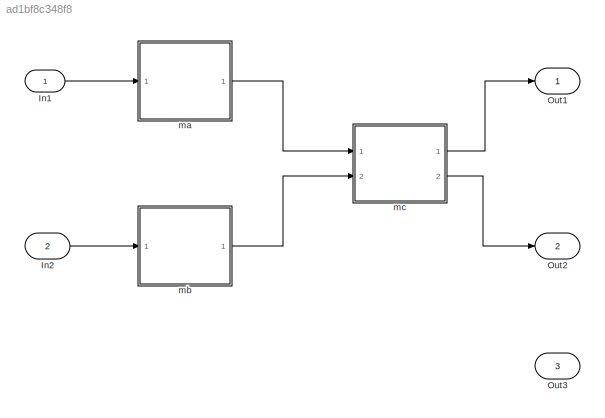
MODEL slx_ad1bf8c348f8
KIND model
CONFIG AbsTol = auto
CONFIG EnableMultiTasking = off
CONFIG FixedStep = auto
CONFIG MaxStep = auto
CONFIG MinStep = auto
CONFIG RelTol = 1e-3
CONFIG SampleTimeConstraint = Unconstrained
CONFIG Solver = VariableStepAuto
CONFIG SolverName = VariableStepAuto
CONFIG StartTime = 0.0
CONFIG StopTime = 10.0
BLOCK [Inport] In1
  IconDisplay = Port number
  OutDataTypeStr = double
BLOCK [Inport] In2
  IconDisplay = Port number
  OutDataTypeStr = int32
  Port = 2
BLOCK [Outport] Out1
  IconDisplay = Port number
  OutDataTypeStr = double
BLOCK [Outport] Out2
  IconDisplay = Port number
  OutDataTypeStr = boolean
  Port = 2
BLOCK [Outport] Out3
  IconDisplay = Port number
  OutDataTypeStr = boolean
  Port = 3
BLOCK [ModelReference] ma
  ModelNameDialog = Mission_A
  ModelReferenceVersion = 1.1
  Ports = [1, 1]
BLOCK [ModelReference] mb
  ModelNameDialog = Mission_B
  ModelReferenceVersion = 1.1
  Ports = [1, 1]
BLOCK [ModelReference] mc
  ModelNameDialog = Mission_C
  ModelReferenceVersion = 1.1
  Ports = [2, 2]
LINE In1:1 -> ma:1
LINE In2:1 -> mb:1
LINE ma:1 -> mc:1
LINE mb:1 -> mc:2
LINE mc:1 -> Out1:1
LINE mc:2 -> Out2:1
